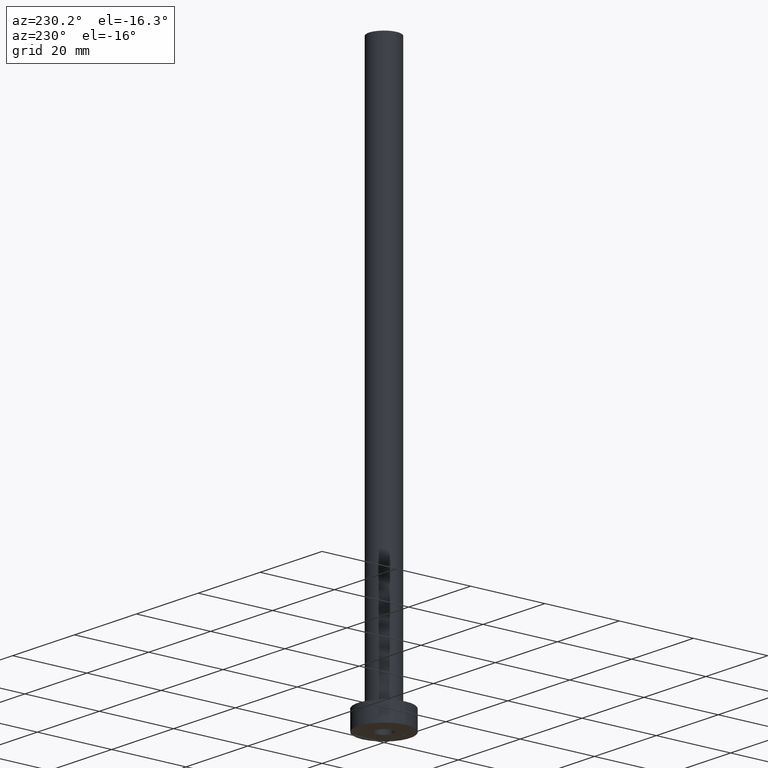
[diagram: clean part render]
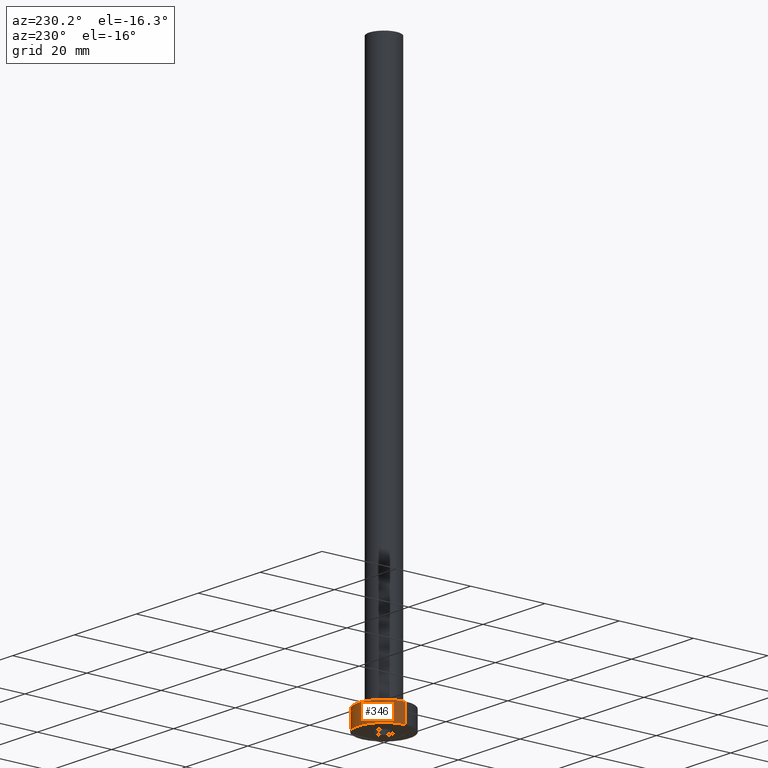
[diagram: same view with one face highlighted and labeled with its STEP entity id]
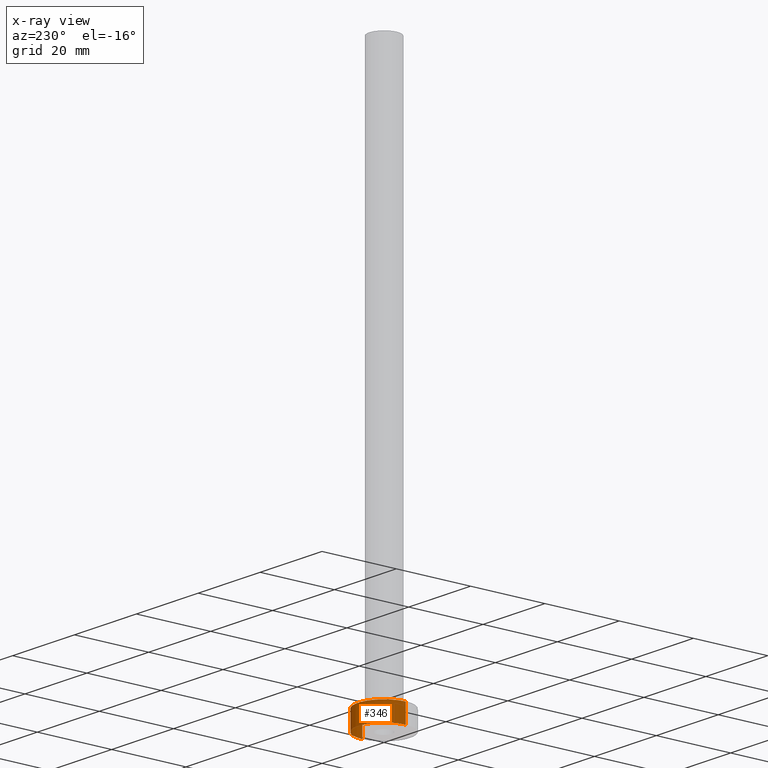
[diagram: x-ray of the same camera — body ghosted, the highlighted face saturated]
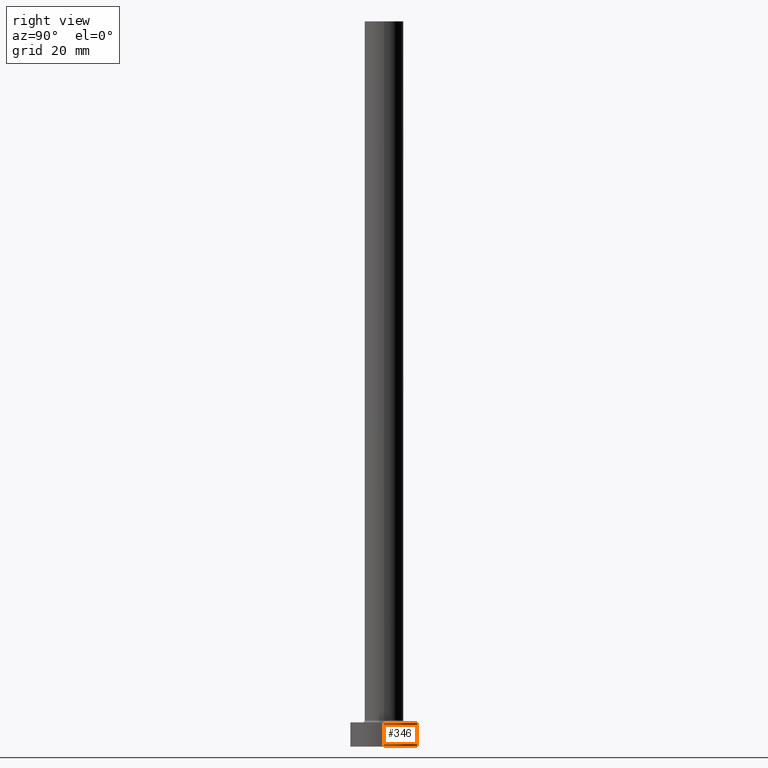
[diagram: same view with one face highlighted and labeled with its STEP entity id]
A machine part, auxiliary view. The second image highlights one B-rep face of the part: STEP entity #346.
The next image is the same camera in x-ray: the body ghosted, the highlighted face saturated — about 0% of this face is hidden behind the body in this view.
A second angle (right view) of the same face is appended — the face is thin or edge-on in the first view.
In plain terms, the highlighted cylindrical surface (edge-blend (fillet) strip) has radius 7 mm, axis along (-0, -0, -1).
Its self-contained STEP definition (entity closure, byte-faithful):
#10 = CARTESIAN_POINT ( 'NONE',  ( 0.000000000000000000, 0.000000000000000000, 5.000000000000000000 ) ) ;
#15 = VERTEX_POINT ( 'NONE', #234 ) ;
#44 = CIRCLE ( 'NONE', #104, 7.000000000000000000 ) ;
#48 = ORIENTED_EDGE ( 'NONE', *, *, #134, .F. ) ;
#63 = FACE_OUTER_BOUND ( 'NONE', #282, .T. ) ;
#96 = DIRECTION ( 'NONE',  ( -1.000000000000000000, 0.000000000000000000, 0.000000000000000000 ) ) ;
#99 = CARTESIAN_POINT ( 'NONE',  ( 0.000000000000000000, 0.000000000000000000, 5.000000000000000000 ) ) ;
#104 = AXIS2_PLACEMENT_3D ( 'NONE', #10, #440, #444 ) ;
#106 = DIRECTION ( 'NONE',  ( -0.000000000000000000, -0.000000000000000000, -1.000000000000000000 ) ) ;
#108 = DIRECTION ( 'NONE',  ( -0.000000000000000000, -0.000000000000000000, -1.000000000000000000 ) ) ;
#128 = AXIS2_PLACEMENT_3D ( 'NONE', #99, #106, #96 ) ;
#129 = CARTESIAN_POINT ( 'NONE',  ( -7.000000000000000000, 0.000000000000000000, 0.000000000000000000 ) ) ;
#134 = EDGE_CURVE ( 'NONE', #15, #389, #254, .T. ) ;
#144 = AXIS2_PLACEMENT_3D ( 'NONE', #186, #447, #298 ) ;
#148 = DIRECTION ( 'NONE',  ( -0.000000000000000000, -0.000000000000000000, -1.000000000000000000 ) ) ;
#159 = CARTESIAN_POINT ( 'NONE',  ( 7.000000000000000000, 8.572527594031473190E-16, 0.000000000000000000 ) ) ;
#163 = VECTOR ( 'NONE', #108, 1000.000000000000000 ) ;
#177 = CYLINDRICAL_SURFACE ( 'NONE', #128, 7.000000000000000000 ) ;
#180 = ORIENTED_EDGE ( 'NONE', *, *, #458, .T. ) ;
#186 = CARTESIAN_POINT ( 'NONE',  ( 0.000000000000000000, 0.000000000000000000, 0.000000000000000000 ) ) ;
#234 = CARTESIAN_POINT ( 'NONE',  ( -7.000000000000000000, 0.000000000000000000, 5.000000000000000000 ) ) ;
#245 = VERTEX_POINT ( 'NONE', #159 ) ;
#254 = LINE ( 'NONE', #299, #364 ) ;
#282 = EDGE_LOOP ( 'NONE', ( #336, #461, #180, #48 ) ) ;
#289 = CARTESIAN_POINT ( 'NONE',  ( 7.000000000000000000, 8.572527594031473190E-16, 5.000000000000000000 ) ) ;
#294 = CIRCLE ( 'NONE', #144, 7.000000000000000000 ) ;
#298 = DIRECTION ( 'NONE',  ( 1.000000000000000000, 0.000000000000000000, 0.000000000000000000 ) ) ;
#299 = CARTESIAN_POINT ( 'NONE',  ( -7.000000000000000000, 0.000000000000000000, 5.000000000000000000 ) ) ;
#311 = EDGE_CURVE ( 'NONE', #372, #245, #365, .T. ) ;
#336 = ORIENTED_EDGE ( 'NONE', *, *, #454, .F. ) ;
#346 = ADVANCED_FACE ( 'NONE', ( #63 ), #177, .T. ) ;
#364 = VECTOR ( 'NONE', #148, 1000.000000000000000 ) ;
#365 = LINE ( 'NONE', #289, #163 ) ;
#372 = VERTEX_POINT ( 'NONE', #459 ) ;
#389 = VERTEX_POINT ( 'NONE', #129 ) ;
#440 = DIRECTION ( 'NONE',  ( 0.000000000000000000, 0.000000000000000000, 1.000000000000000000 ) ) ;
#444 = DIRECTION ( 'NONE',  ( 1.000000000000000000, 0.000000000000000000, 0.000000000000000000 ) ) ;
#447 = DIRECTION ( 'NONE',  ( 0.000000000000000000, 0.000000000000000000, 1.000000000000000000 ) ) ;
#454 = EDGE_CURVE ( 'NONE', #372, #15, #44, .T. ) ;
#458 = EDGE_CURVE ( 'NONE', #245, #389, #294, .T. ) ;
#459 = CARTESIAN_POINT ( 'NONE',  ( 7.000000000000000000, 8.572527594031473190E-16, 5.000000000000000000 ) ) ;
#461 = ORIENTED_EDGE ( 'NONE', *, *, #311, .T. ) ;